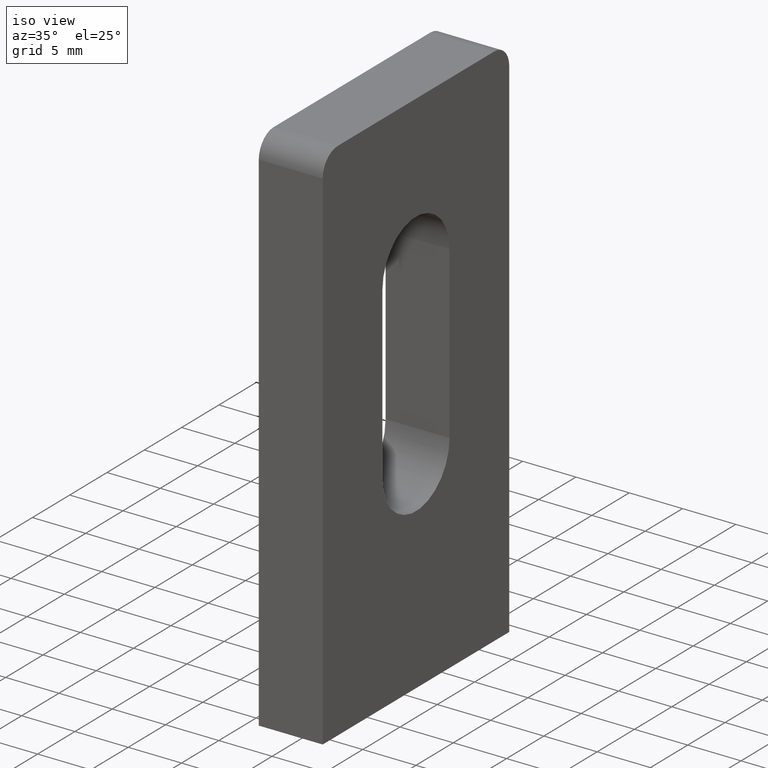
[diagram: clean part render]
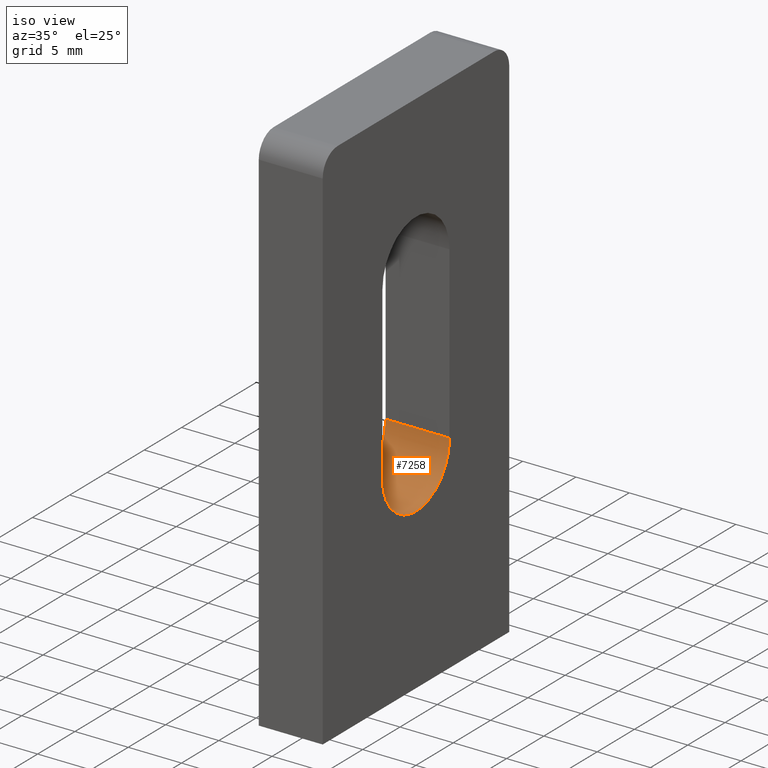
[diagram: same view with one face highlighted and labeled with its STEP entity id]
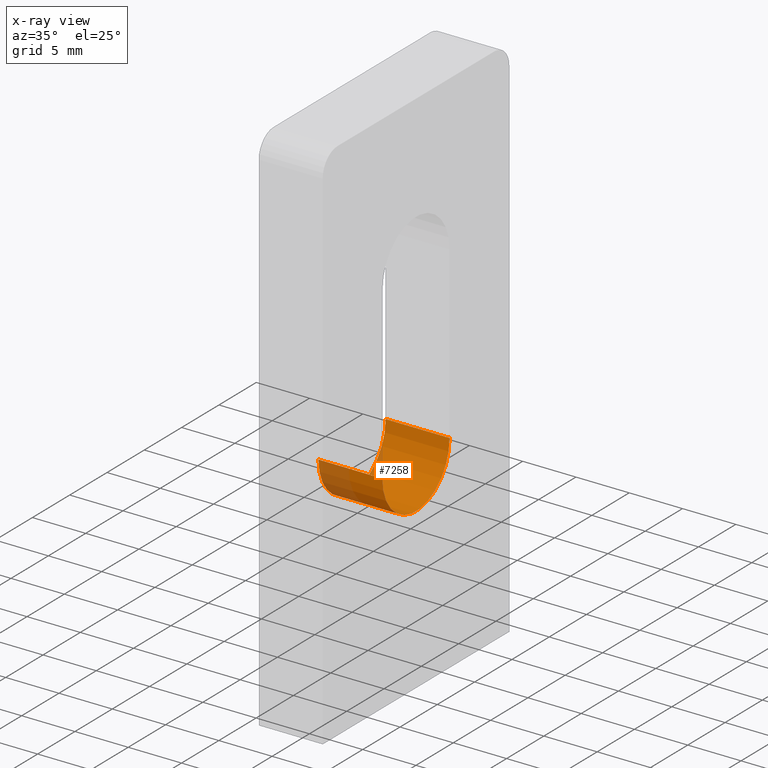
[diagram: x-ray of the same camera — body ghosted, the highlighted face saturated]
A machine part, iso view. The second image highlights one B-rep face of the part: STEP entity #7258.
The next image is the same camera in x-ray: the body ghosted, the highlighted face saturated — about 16% of this face is hidden behind the body in this view.
In plain terms, the highlighted cylindrical surface (partial cylindrical patch) has radius 4.5 mm, axis along (1, -0, -0).
Its self-contained STEP definition (entity closure, byte-faithful):
#492 = VERTEX_POINT ( 'NONE', #7284 ) ;
#930 = VERTEX_POINT ( 'NONE', #5452 ) ;
#1438 = CARTESIAN_POINT ( 'NONE',  ( 3.000000000000000000, -9.797174393178819741E-16, 19.50000000000000355 ) ) ;
#2347 = DIRECTION ( 'NONE',  ( 0.000000000000000000, 0.000000000000000000, -1.000000000000000000 ) ) ;
#2701 = AXIS2_PLACEMENT_3D ( 'NONE', #1438, #4430, #2347 ) ;
#2852 = AXIS2_PLACEMENT_3D ( 'NONE', #5174, #7135, #12072 ) ;
#2875 = CIRCLE ( 'NONE', #8506, 4.499999999999999112 ) ;
#2934 = EDGE_CURVE ( 'NONE', #492, #5382, #10195, .T. ) ;
#3379 = ORIENTED_EDGE ( 'NONE', *, *, #10666, .T. ) ;
#3887 = ORIENTED_EDGE ( 'NONE', *, *, #2934, .F. ) ;
#4008 = ORIENTED_EDGE ( 'NONE', *, *, #7028, .F. ) ;
#4078 = EDGE_LOOP ( 'NONE', ( #3379, #3887, #4008, #9769 ) ) ;
#4152 = CARTESIAN_POINT ( 'NONE',  ( -3.000000000000000000, -4.500000000000000000, 19.49999999999998934 ) ) ;
#4430 = DIRECTION ( 'NONE',  ( 1.000000000000000000, 0.000000000000000000, 0.000000000000000000 ) ) ;
#4674 = CARTESIAN_POINT ( 'NONE',  ( -3.000000000000000000, -9.797174393178819741E-16, 19.50000000000000355 ) ) ;
#4739 = VECTOR ( 'NONE', #11978, 1000.000000000000000 ) ;
#5174 = CARTESIAN_POINT ( 'NONE',  ( -3.000000000000000000, -9.797174393178819741E-16, 19.50000000000000355 ) ) ;
#5198 = LINE ( 'NONE', #4152, #4739 ) ;
#5382 = VERTEX_POINT ( 'NONE', #7499 ) ;
#5452 = CARTESIAN_POINT ( 'NONE',  ( 3.000000000000000000, -4.500000000000000000, 19.49999999999998934 ) ) ;
#7028 = EDGE_CURVE ( 'NONE', #10122, #492, #2875, .T. ) ;
#7135 = DIRECTION ( 'NONE',  ( 1.000000000000000000, -0.000000000000000000, -0.000000000000000000 ) ) ;
#7169 = EDGE_CURVE ( 'NONE', #10122, #930, #5198, .T. ) ;
#7258 = ADVANCED_FACE ( 'NONE', ( #12022 ), #8322, .F. ) ;
#7284 = CARTESIAN_POINT ( 'NONE',  ( -3.000000000000000000, 4.499999999999998224, 19.49999999999998934 ) ) ;
#7499 = CARTESIAN_POINT ( 'NONE',  ( 3.000000000000000000, 4.499999999999998224, 19.49999999999998934 ) ) ;
#7903 = CARTESIAN_POINT ( 'NONE',  ( -3.000000000000000000, 4.499999999999998224, 19.49999999999998934 ) ) ;
#7987 = DIRECTION ( 'NONE',  ( 1.000000000000000000, -0.000000000000000000, -0.000000000000000000 ) ) ;
#8322 = CYLINDRICAL_SURFACE ( 'NONE', #2852, 4.499999999999999112 ) ;
#8506 = AXIS2_PLACEMENT_3D ( 'NONE', #4674, #11608, #8656 ) ;
#8656 = DIRECTION ( 'NONE',  ( 0.000000000000000000, 0.000000000000000000, -1.000000000000000000 ) ) ;
#8990 = CARTESIAN_POINT ( 'NONE',  ( -3.000000000000000000, -4.500000000000000000, 19.49999999999998934 ) ) ;
#9769 = ORIENTED_EDGE ( 'NONE', *, *, #7169, .T. ) ;
#10122 = VERTEX_POINT ( 'NONE', #8990 ) ;
#10195 = LINE ( 'NONE', #7903, #12197 ) ;
#10666 = EDGE_CURVE ( 'NONE', #930, #5382, #12194, .T. ) ;
#11608 = DIRECTION ( 'NONE',  ( 1.000000000000000000, 0.000000000000000000, 0.000000000000000000 ) ) ;
#11978 = DIRECTION ( 'NONE',  ( 1.000000000000000000, -0.000000000000000000, -0.000000000000000000 ) ) ;
#12022 = FACE_OUTER_BOUND ( 'NONE', #4078, .T. ) ;
#12072 = DIRECTION ( 'NONE',  ( 0.000000000000000000, 0.000000000000000000, -1.000000000000000000 ) ) ;
#12194 = CIRCLE ( 'NONE', #2701, 4.499999999999999112 ) ;
#12197 = VECTOR ( 'NONE', #7987, 1000.000000000000000 ) ;